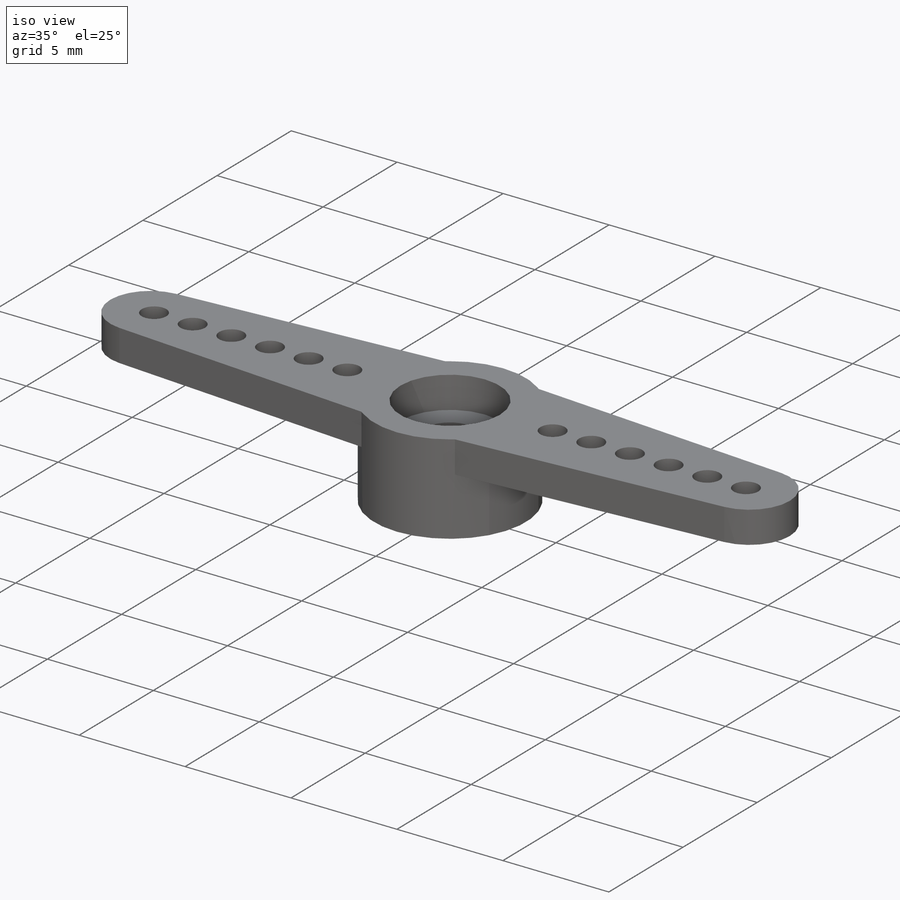
[diagram: iso view]
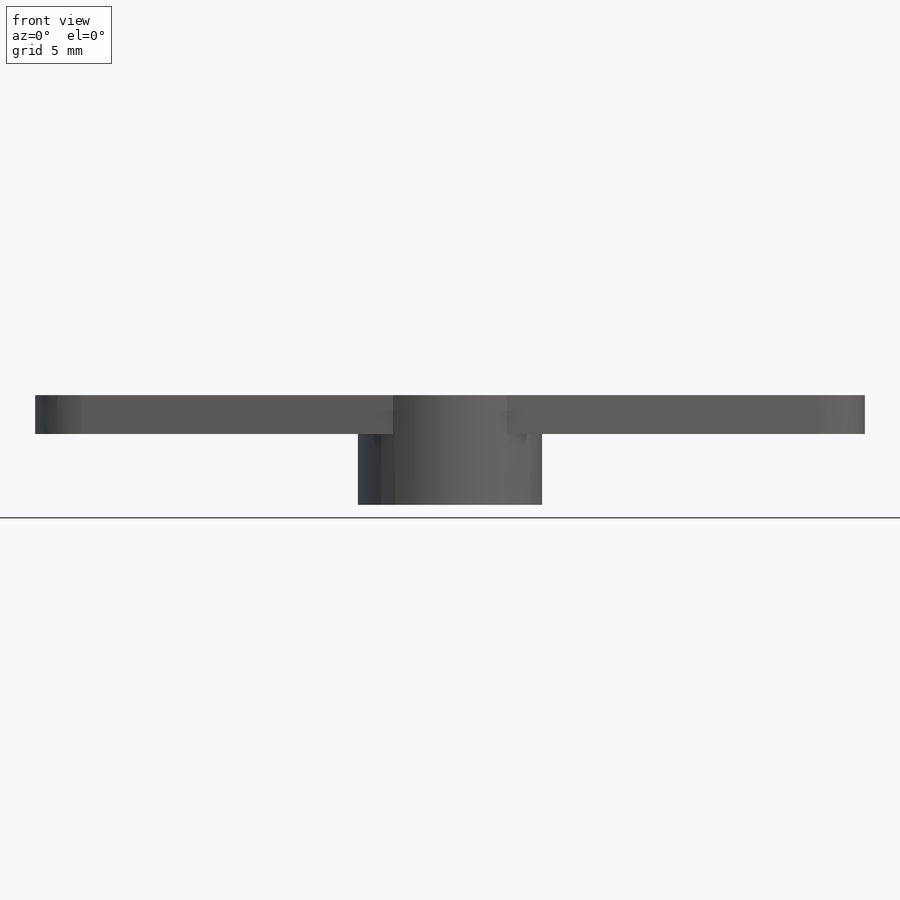
[diagram: front view]
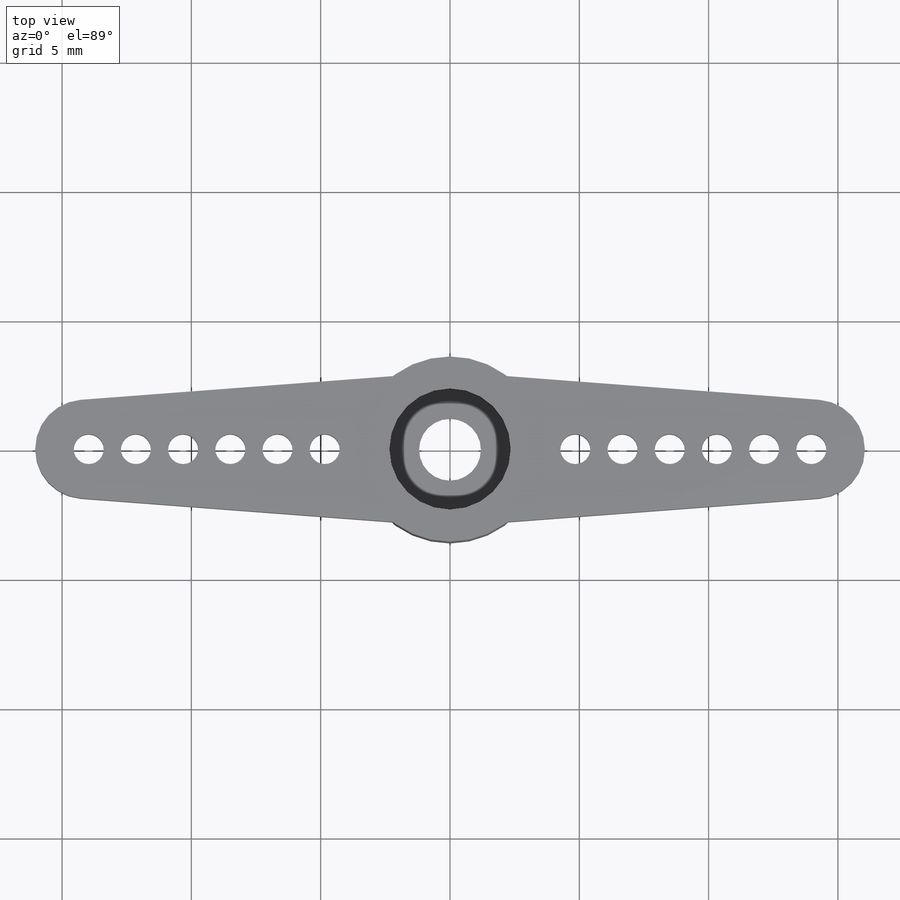
[diagram: top view]
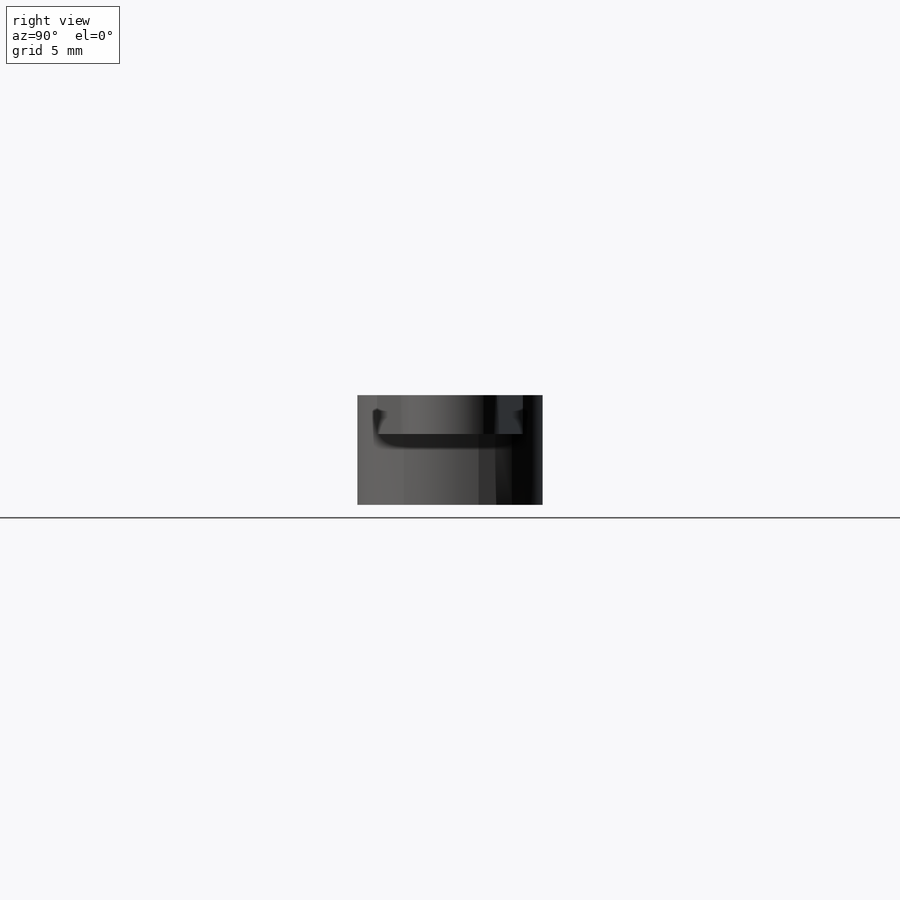
[diagram: right view]
SOLIDWORKS PART (.sldprt)
format: sldprt  version: not decoded by parser v0  size: 616,960 bytes
history: native  units: mm
features: sketch x6, extrude x3, cut_extrude x3, material x1, pattern_linear x1, mirror x1 (+16 scaffold rows collapsed)
feature tree (31):
  scaffold x16  (default folders/planes/origin — collapsed)
  material  "ABS"
  sketch  "Sketch1"  dims[c1.D1=7.16mm c1.D2=~10.040222mm c1.D3=3.82mm c1.D5=4.69mm c2.D2=32.08mm c2.D4=2.82mm]
  extrude  "Extrude1"  Depth=1.5mm
  sketch  "Sketch2"  dims[D1=4.36mm]
  extrude  "Extrude2"  Depth=2.74mm
  sketch  "Sketch3"  dims[D1=2.39mm]
  extrude  "Extrude3"  Depth=0.2mm
  sketch  "Sketch4"  dims[c1.D1=1.16mm c1.D2=~3.65395mm c1.D3=~3.65395mm c2.D2=1.92mm]
  cut_extrude  "Extrude4"  [1 undecoded]
  pattern_linear  "LPattern1"  Count1=6 Count2=1 Spacing1=1.825mm Spacing2=50mm
  mirror  "Mirror1"
  sketch  "Sketch5"
  cut_extrude  "Extrude5"  [1 undecoded]
  sketch  "Sketch6"  dims[D1=7.0mm]
  cut_extrude  "Extrude6"  [1 undecoded]
decode coverage: 9 of 14 modeling features carry decoded parameters
note: ~ marks probable driven/reference dimensions
note: 3 parameter values undecoded
summary: no parameter record found for 3 features
note: suppression state not decoded; provenance and decode notes live in map.json
